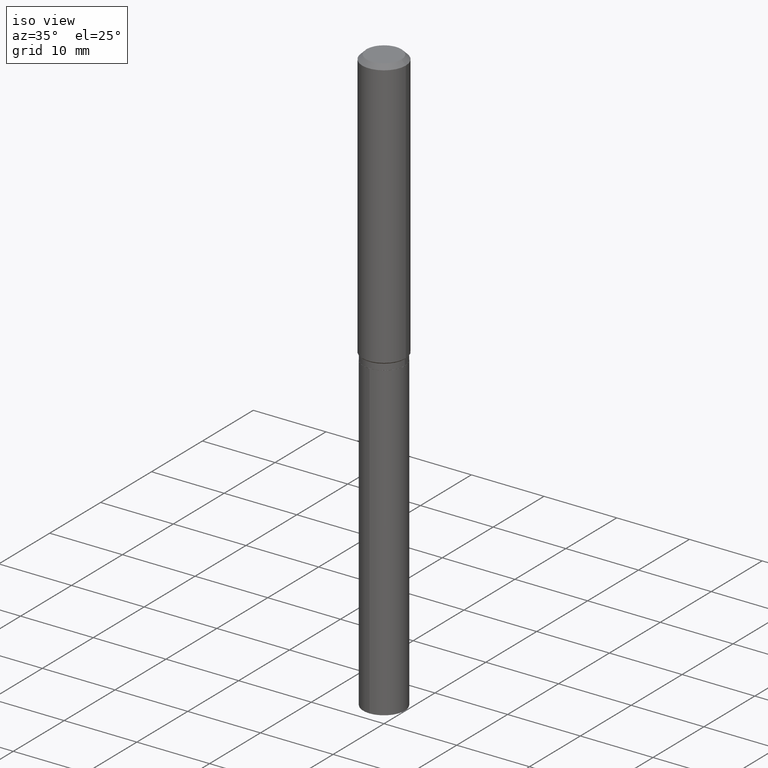
[diagram: clean part render]
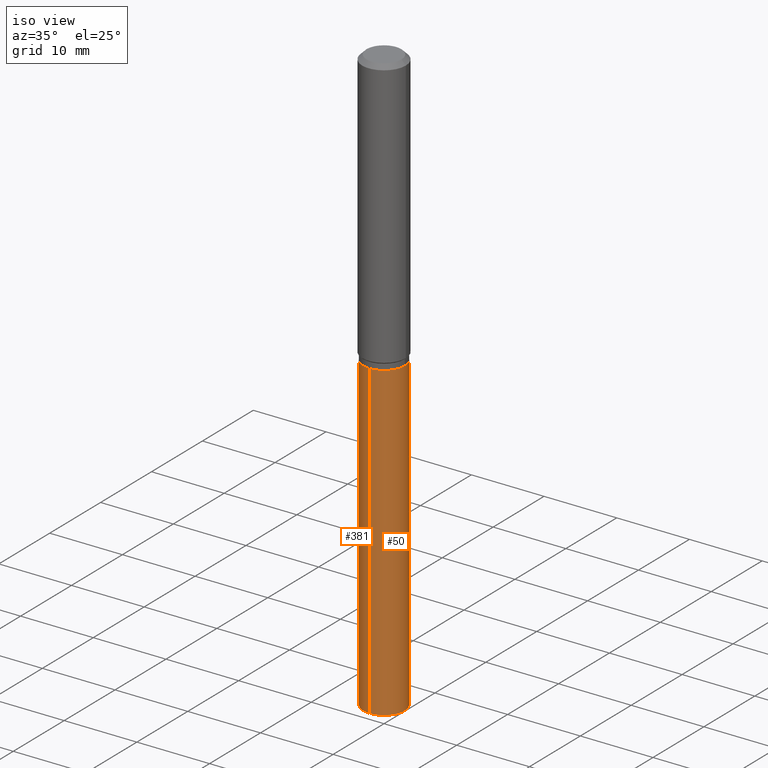
[diagram: same view with one multi-face feature highlighted, each face labeled with its STEP entity id]
A machine part, iso view. The highlighted faces form ONE feature: a constant-radius fillet chain: 2 tangent blend faces with common blend radius 2.8499 mm. The faces share edges in the B-rep.
Their STEP definitions:
[1] entity #381 (Cylinder):
#34 = EDGE_CURVE ( 'NONE', #252, #44, #487, .T. ) ;
#44 = VERTEX_POINT ( 'NONE', #328 ) ;
#58 = VECTOR ( 'NONE', #100, 39.37007874015748143 ) ;
#59 = EDGE_CURVE ( 'NONE', #128, #44, #395, .T. ) ;
#86 = ORIENTED_EDGE ( 'NONE', *, *, #484, .T. ) ;
#96 = EDGE_LOOP ( 'NONE', ( #301, #86, #425, #118 ) ) ;
#97 = DIRECTION ( 'NONE',  ( -6.982962677686265133E-15, -1.000000000000000000, 2.434802133390608632E-15 ) ) ;
#100 = DIRECTION ( 'NONE',  ( -2.445439244954803543E-29, 3.491523672207503899E-15, 1.000000000000000000 ) ) ;
#102 = LINE ( 'NONE', #268, #116 ) ;
#104 = DIRECTION ( 'NONE',  ( -2.445439244954803543E-29, 3.491523672207503899E-15, 1.000000000000000000 ) ) ;
#113 = VERTEX_POINT ( 'NONE', #280 ) ;
#116 = VECTOR ( 'NONE', #104, 39.37007874015748143 ) ;
#118 = ORIENTED_EDGE ( 'NONE', *, *, #34, .F. ) ;
#128 = VERTEX_POINT ( 'NONE', #186 ) ;
#130 = DIRECTION ( 'NONE',  ( -2.445439244954803263E-29, 3.491523672207503504E-15, 1.000000000000000000 ) ) ;
#160 = AXIS2_PLACEMENT_3D ( 'NONE', #209, #320, #344 ) ;
#171 = CARTESIAN_POINT ( 'NONE',  ( 3.657687693411109493E-29, -5.222208638507693246E-15, -1.495700000000000029 ) ) ;
#182 = FACE_OUTER_BOUND ( 'NONE', #96, .T. ) ;
#186 = CARTESIAN_POINT ( 'NONE',  ( -7.834884124363210048E-16, -0.1122000000000110825, -3.183803244636003615 ) ) ;
#205 = CARTESIAN_POINT ( 'NONE',  ( 3.657687693411109493E-29, -5.222208638507693246E-15, -1.495700000000000029 ) ) ;
#209 = CARTESIAN_POINT ( 'NONE',  ( 7.785841617379532030E-29, -1.111626107828459545E-14, -3.183803244636004059 ) ) ;
#252 = VERTEX_POINT ( 'NONE', #373 ) ;
#268 = CARTESIAN_POINT ( 'NONE',  ( 7.972289495228688520E-16, 0.1121999999999947761, -1.495700000000000474 ) ) ;
#280 = CARTESIAN_POINT ( 'NONE',  ( 7.972289495229100700E-16, 0.1121999999999888642, -3.183803244636004504 ) ) ;
#301 = ORIENTED_EDGE ( 'NONE', *, *, #353, .F. ) ;
#320 = DIRECTION ( 'NONE',  ( -2.445439244954803263E-29, 3.491523672207503504E-15, 1.000000000000000000 ) ) ;
#327 = AXIS2_PLACEMENT_3D ( 'NONE', #205, #401, #97 ) ;
#328 = CARTESIAN_POINT ( 'NONE',  ( -7.834884124363625186E-16, -0.1122000000000052261, -1.495699999999999807 ) ) ;
#344 = DIRECTION ( 'NONE',  ( -6.982962677686265133E-15, -1.000000000000000000, 4.869604266781217263E-15 ) ) ;
#353 = EDGE_CURVE ( 'NONE', #113, #252, #102, .T. ) ;
#357 = CIRCLE ( 'NONE', #160, 0.1122000000000000081 ) ;
#373 = CARTESIAN_POINT ( 'NONE',  ( 7.972289495229102672E-16, 0.1121999999999947761, -1.495700000000000474 ) ) ;
#375 = CYLINDRICAL_SURFACE ( 'NONE', #327, 0.1122000000000000081 ) ;
#381 = ADVANCED_FACE ( 'NONE', ( #182 ), #375, .T. ) ;
#390 = DIRECTION ( 'NONE',  ( -6.982962677686265133E-15, -1.000000000000000000, 2.434802133390608632E-15 ) ) ;
#395 = LINE ( 'NONE', #439, #58 ) ;
#401 = DIRECTION ( 'NONE',  ( -2.445439244954803263E-29, 3.491523672207503504E-15, 1.000000000000000000 ) ) ;
#421 = AXIS2_PLACEMENT_3D ( 'NONE', #171, #130, #390 ) ;
#425 = ORIENTED_EDGE ( 'NONE', *, *, #59, .T. ) ;
#439 = CARTESIAN_POINT ( 'NONE',  ( -7.834884124363625186E-16, -0.1122000000000052261, -1.495699999999999807 ) ) ;
#484 = EDGE_CURVE ( 'NONE', #113, #128, #357, .T. ) ;
#487 = CIRCLE ( 'NONE', #421, 0.1122000000000000081 ) ;
[2] entity #50 (Cylinder):
#24 = CARTESIAN_POINT ( 'NONE',  ( 7.785841617379532030E-29, -1.111626107828459545E-14, -3.183803244636004059 ) ) ;
#44 = VERTEX_POINT ( 'NONE', #328 ) ;
#50 = ADVANCED_FACE ( 'NONE', ( #132 ), #285, .T. ) ;
#58 = VECTOR ( 'NONE', #100, 39.37007874015748143 ) ;
#59 = EDGE_CURVE ( 'NONE', #128, #44, #395, .T. ) ;
#62 = DIRECTION ( 'NONE',  ( -2.445439244954803263E-29, 3.491523672207503504E-15, 1.000000000000000000 ) ) ;
#69 = AXIS2_PLACEMENT_3D ( 'NONE', #437, #174, #473 ) ;
#71 = EDGE_CURVE ( 'NONE', #128, #113, #288, .T. ) ;
#100 = DIRECTION ( 'NONE',  ( -2.445439244954803543E-29, 3.491523672207503899E-15, 1.000000000000000000 ) ) ;
#102 = LINE ( 'NONE', #268, #116 ) ;
#104 = DIRECTION ( 'NONE',  ( -2.445439244954803543E-29, 3.491523672207503899E-15, 1.000000000000000000 ) ) ;
#113 = VERTEX_POINT ( 'NONE', #280 ) ;
#116 = VECTOR ( 'NONE', #104, 39.37007874015748143 ) ;
#125 = EDGE_CURVE ( 'NONE', #44, #252, #338, .T. ) ;
#128 = VERTEX_POINT ( 'NONE', #186 ) ;
#132 = FACE_OUTER_BOUND ( 'NONE', #468, .T. ) ;
#158 = AXIS2_PLACEMENT_3D ( 'NONE', #264, #413, #262 ) ;
#174 = DIRECTION ( 'NONE',  ( -2.445439244954803263E-29, 3.491523672207503504E-15, 1.000000000000000000 ) ) ;
#186 = CARTESIAN_POINT ( 'NONE',  ( -7.834884124363210048E-16, -0.1122000000000110825, -3.183803244636003615 ) ) ;
#252 = VERTEX_POINT ( 'NONE', #373 ) ;
#262 = DIRECTION ( 'NONE',  ( -6.982962677686265133E-15, -1.000000000000000000, 2.434802133390608632E-15 ) ) ;
#264 = CARTESIAN_POINT ( 'NONE',  ( 3.657687693411109493E-29, -5.222208638507693246E-15, -1.495700000000000029 ) ) ;
#268 = CARTESIAN_POINT ( 'NONE',  ( 7.972289495228688520E-16, 0.1121999999999947761, -1.495700000000000474 ) ) ;
#280 = CARTESIAN_POINT ( 'NONE',  ( 7.972289495229100700E-16, 0.1121999999999888642, -3.183803244636004504 ) ) ;
#285 = CYLINDRICAL_SURFACE ( 'NONE', #69, 0.1122000000000000081 ) ;
#288 = CIRCLE ( 'NONE', #333, 0.1122000000000000081 ) ;
#310 = ORIENTED_EDGE ( 'NONE', *, *, #71, .T. ) ;
#317 = ORIENTED_EDGE ( 'NONE', *, *, #125, .F. ) ;
#328 = CARTESIAN_POINT ( 'NONE',  ( -7.834884124363625186E-16, -0.1122000000000052261, -1.495699999999999807 ) ) ;
#333 = AXIS2_PLACEMENT_3D ( 'NONE', #24, #62, #431 ) ;
#338 = CIRCLE ( 'NONE', #158, 0.1122000000000000081 ) ;
#353 = EDGE_CURVE ( 'NONE', #113, #252, #102, .T. ) ;
#373 = CARTESIAN_POINT ( 'NONE',  ( 7.972289495229102672E-16, 0.1121999999999947761, -1.495700000000000474 ) ) ;
#395 = LINE ( 'NONE', #439, #58 ) ;
#413 = DIRECTION ( 'NONE',  ( -2.445439244954803263E-29, 3.491523672207503504E-15, 1.000000000000000000 ) ) ;
#431 = DIRECTION ( 'NONE',  ( -6.982962677686265133E-15, -1.000000000000000000, 4.869604266781217263E-15 ) ) ;
#437 = CARTESIAN_POINT ( 'NONE',  ( 3.657687693411109493E-29, -5.222208638507693246E-15, -1.495700000000000029 ) ) ;
#439 = CARTESIAN_POINT ( 'NONE',  ( -7.834884124363625186E-16, -0.1122000000000052261, -1.495699999999999807 ) ) ;
#457 = ORIENTED_EDGE ( 'NONE', *, *, #59, .F. ) ;
#458 = ORIENTED_EDGE ( 'NONE', *, *, #353, .T. ) ;
#468 = EDGE_LOOP ( 'NONE', ( #310, #458, #317, #457 ) ) ;
#473 = DIRECTION ( 'NONE',  ( -6.982962677686265133E-15, -1.000000000000000000, 2.434802133390608632E-15 ) ) ;